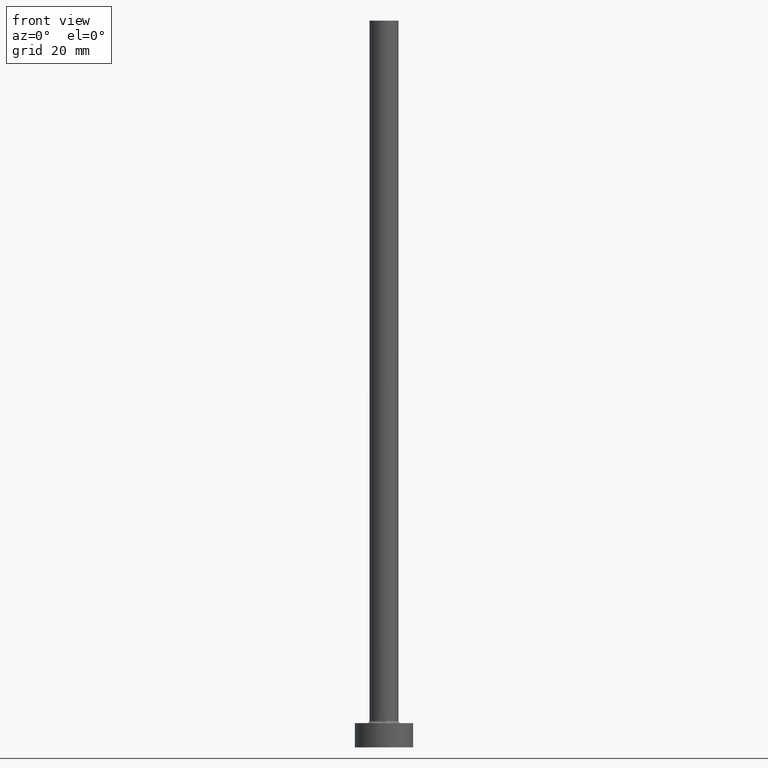
[diagram: clean part render]
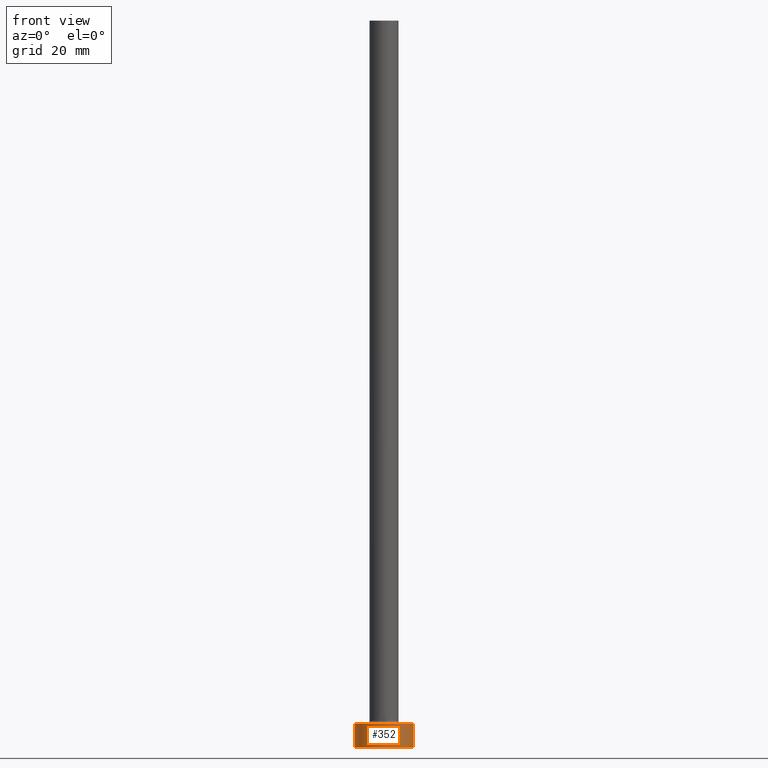
[diagram: same view with one face highlighted and labeled with its STEP entity id]
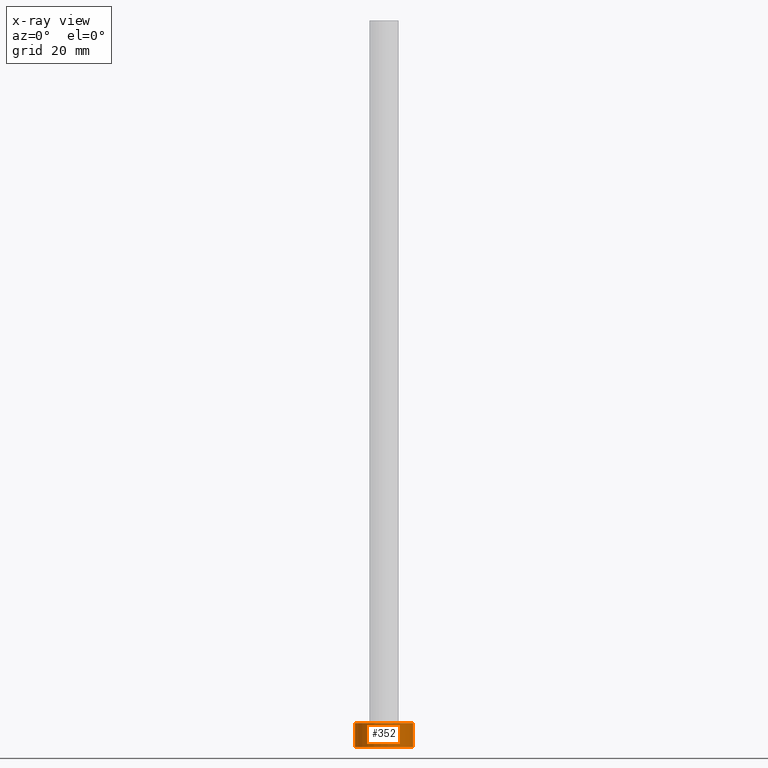
[diagram: x-ray of the same camera — body ghosted, the highlighted face saturated]
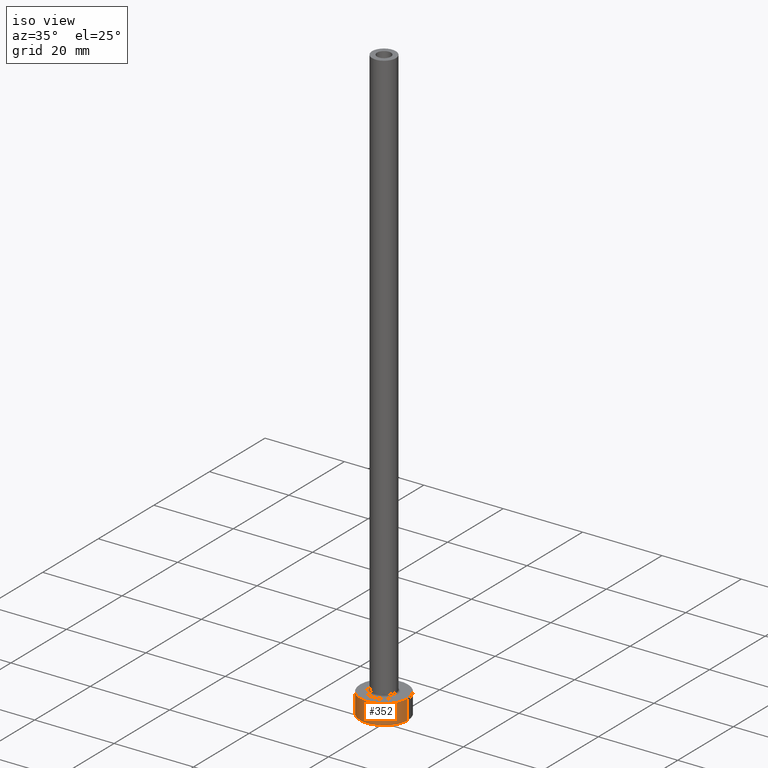
[diagram: same view with one face highlighted and labeled with its STEP entity id]
A machine part, front view. The second image highlights one B-rep face of the part: STEP entity #352.
The next image is the same camera in x-ray: the body ghosted, the highlighted face saturated — about 0% of this face is hidden behind the body in this view.
A second angle (iso view) of the same face is appended — the face is thin or edge-on in the first view.
In plain terms, the highlighted cylindrical surface (edge-blend (fillet) strip) has radius 6 mm, axis along (-0, -0, -1).
Its self-contained STEP definition (entity closure, byte-faithful):
#4 = FACE_OUTER_BOUND ( 'NONE', #275, .T. ) ;
#37 = CARTESIAN_POINT ( 'NONE',  ( 6.000000000000000888, 7.347880794884120722E-16, 5.000000000000000000 ) ) ;
#42 = EDGE_CURVE ( 'NONE', #139, #438, #267, .T. ) ;
#45 = CARTESIAN_POINT ( 'NONE',  ( 0.000000000000000000, 0.000000000000000000, 5.000000000000000000 ) ) ;
#93 = VECTOR ( 'NONE', #280, 1000.000000000000000 ) ;
#103 = VECTOR ( 'NONE', #290, 1000.000000000000000 ) ;
#104 = CARTESIAN_POINT ( 'NONE',  ( -6.000000000000000888, 0.000000000000000000, 5.000000000000000000 ) ) ;
#109 = AXIS2_PLACEMENT_3D ( 'NONE', #235, #163, #274 ) ;
#123 = ORIENTED_EDGE ( 'NONE', *, *, #260, .F. ) ;
#137 = ORIENTED_EDGE ( 'NONE', *, *, #42, .T. ) ;
#138 = LINE ( 'NONE', #104, #93 ) ;
#139 = VERTEX_POINT ( 'NONE', #283 ) ;
#140 = CARTESIAN_POINT ( 'NONE',  ( -6.000000000000000888, 0.000000000000000000, 5.000000000000000000 ) ) ;
#144 = DIRECTION ( 'NONE',  ( -0.000000000000000000, -0.000000000000000000, -1.000000000000000000 ) ) ;
#163 = DIRECTION ( 'NONE',  ( 0.000000000000000000, 0.000000000000000000, 1.000000000000000000 ) ) ;
#170 = CARTESIAN_POINT ( 'NONE',  ( 6.000000000000000888, 7.347880794884120722E-16, 5.000000000000000000 ) ) ;
#182 = LINE ( 'NONE', #37, #103 ) ;
#186 = CARTESIAN_POINT ( 'NONE',  ( 6.000000000000000888, 7.347880794884120722E-16, 0.000000000000000000 ) ) ;
#209 = CARTESIAN_POINT ( 'NONE',  ( 0.000000000000000000, 0.000000000000000000, 0.000000000000000000 ) ) ;
#211 = CYLINDRICAL_SURFACE ( 'NONE', #271, 6.000000000000000888 ) ;
#226 = CIRCLE ( 'NONE', #109, 6.000000000000000888 ) ;
#235 = CARTESIAN_POINT ( 'NONE',  ( 0.000000000000000000, 0.000000000000000000, 5.000000000000000000 ) ) ;
#260 = EDGE_CURVE ( 'NONE', #316, #305, #226, .T. ) ;
#267 = CIRCLE ( 'NONE', #433, 6.000000000000000888 ) ;
#271 = AXIS2_PLACEMENT_3D ( 'NONE', #45, #144, #329 ) ;
#274 = DIRECTION ( 'NONE',  ( 1.000000000000000000, 0.000000000000000000, 0.000000000000000000 ) ) ;
#275 = EDGE_LOOP ( 'NONE', ( #415, #123, #440, #137 ) ) ;
#280 = DIRECTION ( 'NONE',  ( -0.000000000000000000, -0.000000000000000000, -1.000000000000000000 ) ) ;
#283 = CARTESIAN_POINT ( 'NONE',  ( -6.000000000000000888, 0.000000000000000000, 0.000000000000000000 ) ) ;
#290 = DIRECTION ( 'NONE',  ( -0.000000000000000000, -0.000000000000000000, -1.000000000000000000 ) ) ;
#305 = VERTEX_POINT ( 'NONE', #170 ) ;
#316 = VERTEX_POINT ( 'NONE', #140 ) ;
#329 = DIRECTION ( 'NONE',  ( -1.000000000000000000, 0.000000000000000000, 0.000000000000000000 ) ) ;
#341 = EDGE_CURVE ( 'NONE', #316, #139, #138, .T. ) ;
#352 = ADVANCED_FACE ( 'NONE', ( #4 ), #211, .T. ) ;
#360 = DIRECTION ( 'NONE',  ( 1.000000000000000000, 0.000000000000000000, 0.000000000000000000 ) ) ;
#369 = DIRECTION ( 'NONE',  ( 0.000000000000000000, 0.000000000000000000, 1.000000000000000000 ) ) ;
#376 = EDGE_CURVE ( 'NONE', #305, #438, #182, .T. ) ;
#415 = ORIENTED_EDGE ( 'NONE', *, *, #376, .F. ) ;
#433 = AXIS2_PLACEMENT_3D ( 'NONE', #209, #369, #360 ) ;
#438 = VERTEX_POINT ( 'NONE', #186 ) ;
#440 = ORIENTED_EDGE ( 'NONE', *, *, #341, .T. ) ;